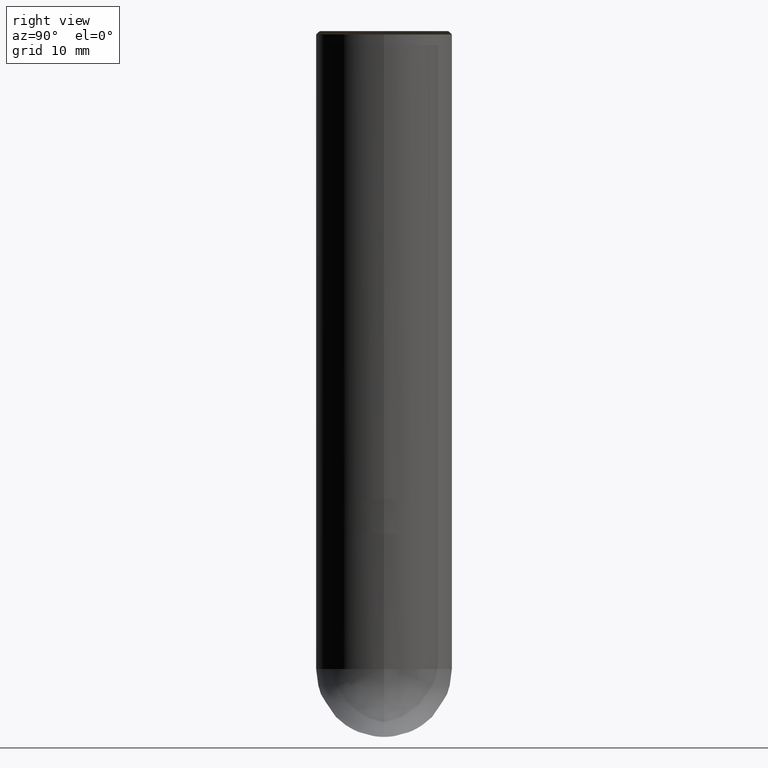
[diagram: clean part render]
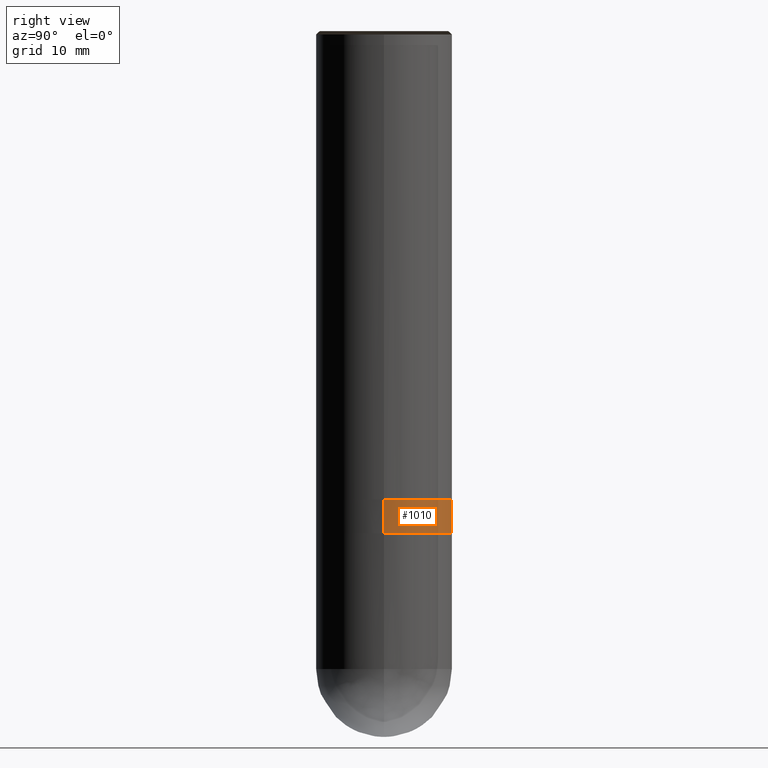
[diagram: same view with one face highlighted and labeled with its STEP entity id]
A machine part, right view. The second image highlights one B-rep face of the part: STEP entity #1010.
In plain terms, the highlighted face is a freeform B-spline surface patch.
Its self-contained STEP definition (entity closure, byte-faithful):
#821=CARTESIAN_POINT('',(10.0,0.0,-5.0));
#822=CARTESIAN_POINT('',(10.0,10.0,-5.0));
#823=CARTESIAN_POINT('',(0.0,10.0,-5.0));
#824=CARTESIAN_POINT('',(-10.0,10.0,-5.0));
#825=CARTESIAN_POINT('',(-10.0,0.0,-5.0));
#836=CARTESIAN_POINT('',(10.0,0.0,0.0));
#837=CARTESIAN_POINT('',(10.0,10.0,0.0));
#838=CARTESIAN_POINT('',(0.0,10.0,0.0));
#839=CARTESIAN_POINT('',(-10.0,10.0,0.0));
#840=CARTESIAN_POINT('',(-10.0,0.0,0.0));
#991=(
BOUNDED_SURFACE()
B_SPLINE_SURFACE(1,2,(
(#821,#822,#823,#824,#825),
(#836,#837,#838,#839,#840)
), .UNSPECIFIED.,.F.,.F.,.F.)
B_SPLINE_SURFACE_WITH_KNOTS((2,2),(3,2,3),(
0.0,1.0),(
0.0,0.5,1.0), .UNSPECIFIED.)
GEOMETRIC_REPRESENTATION_ITEM()
RATIONAL_B_SPLINE_SURFACE(((1.0,0.707106781187,1.0,0.707106781187,1.0),
(1.0,0.707106781187,1.0,0.707106781187,1.0)
))
REPRESENTATION_ITEM('')
SURFACE()
);
#992=(
BOUNDED_CURVE()
B_SPLINE_CURVE(2,(#825,#824,#823,#822,#821),.UNSPECIFIED.,.F.,.F.)
B_SPLINE_CURVE_WITH_KNOTS((3,2,3),
(0.0,0.5,1.0),.UNSPECIFIED.)
CURVE()
GEOMETRIC_REPRESENTATION_ITEM()
RATIONAL_B_SPLINE_CURVE((1.0,0.707106781187,1.0,0.707106781187,1.0))
REPRESENTATION_ITEM('')
);
#993=(
BOUNDED_CURVE()
B_SPLINE_CURVE(1,(#821,#836),.UNSPECIFIED.,.F.,.F.)
B_SPLINE_CURVE_WITH_KNOTS((2,2),
(0.0,1.0),.UNSPECIFIED.)
CURVE()
GEOMETRIC_REPRESENTATION_ITEM()
RATIONAL_B_SPLINE_CURVE((1.0,1.0))
REPRESENTATION_ITEM('')
);
#994=(
BOUNDED_CURVE()
B_SPLINE_CURVE(2,(#836,#837,#838,#839,#840),.UNSPECIFIED.,.F.,.F.)
B_SPLINE_CURVE_WITH_KNOTS((3,2,3),
(0.0,0.5,1.0),.UNSPECIFIED.)
CURVE()
GEOMETRIC_REPRESENTATION_ITEM()
RATIONAL_B_SPLINE_CURVE((1.0,0.707106781187,1.0,0.707106781187,1.0))
REPRESENTATION_ITEM('')
);
#995=(
BOUNDED_CURVE()
B_SPLINE_CURVE(1,(#840,#825),.UNSPECIFIED.,.F.,.F.)
B_SPLINE_CURVE_WITH_KNOTS((2,2),
(0.0,1.0),.UNSPECIFIED.)
CURVE()
GEOMETRIC_REPRESENTATION_ITEM()
RATIONAL_B_SPLINE_CURVE((1.0,1.0))
REPRESENTATION_ITEM('')
);
#996=VERTEX_POINT('',#821);
#997=VERTEX_POINT('',#825);
#998=VERTEX_POINT('',#836);
#999=VERTEX_POINT('',#840);
#1000=EDGE_CURVE('',#997,#996,#992,.T.);
#1001=EDGE_CURVE('',#996,#998,#993,.T.);
#1002=EDGE_CURVE('',#998,#999,#994,.T.);
#1003=EDGE_CURVE('',#999,#997,#995,.T.);
#1004=ORIENTED_EDGE('',*,*,#1000,.T.);
#1005=ORIENTED_EDGE('',*,*,#1001,.T.);
#1006=ORIENTED_EDGE('',*,*,#1002,.T.);
#1007=ORIENTED_EDGE('',*,*,#1003,.T.);
#1008=EDGE_LOOP('',(#1004,#1005,#1006,#1007));
#1009=FACE_OUTER_BOUND('',#1008,.T.);
#1010=ADVANCED_FACE('',(#1009),#991,.T.);